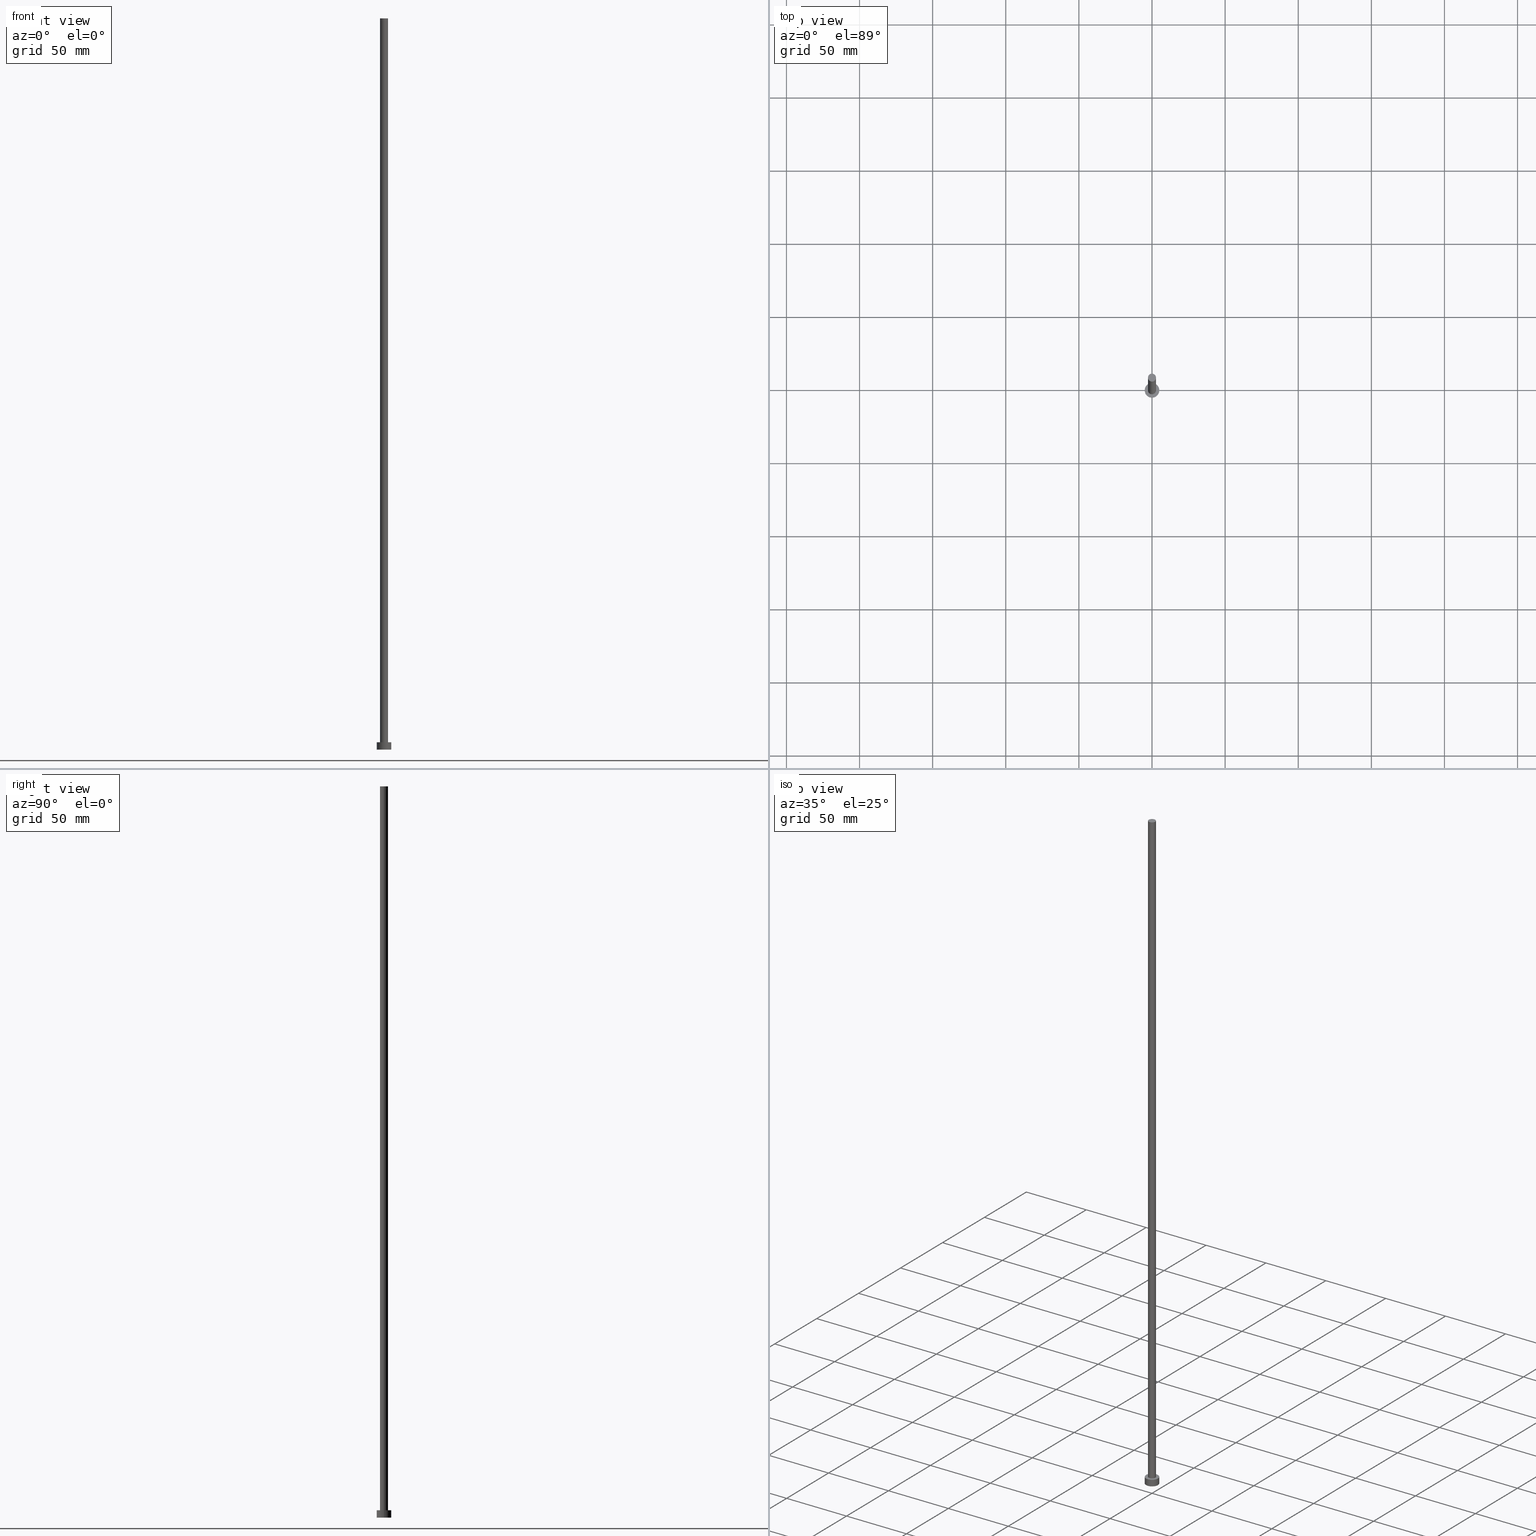
[diagram: canonical four-view strip — front | top / right | iso, engineering-drawing reading convention]
A machine part, canonical four-view strip (front | top / right | iso — engineering-drawing reading convention). The complete STEP part file that produces these views, byte-faithful:
ISO-10303-21;
HEADER;
FILE_DESCRIPTION (( 'STEP AP203' ),
    '1' );
FILE_NAME ('67b7.STEP',
    '2023-02-13T15:46:44',
    ( '' ),
    ( '' ),
    'SwSTEP 2.0',
    'SolidWorks 2019',
    '' );
FILE_SCHEMA (( 'CONFIG_CONTROL_DESIGN' ));
ENDSEC;

DATA;
#1 = CARTESIAN_POINT ( 'NONE',  ( 0.000000000000000000, 0.000000000000000000, 5.000000000000000000 ) ) ;
#2 = DIRECTION ( 'NONE',  ( 1.000000000000000000, 0.000000000000000000, 0.000000000000000000 ) ) ;
#3 = CARTESIAN_POINT ( 'NONE',  ( 0.000000000000000000, 0.000000000000000000, 500.0000000000000000 ) ) ;
#4 = VECTOR ( 'NONE', #43, 1000.000000000000000 ) ;
#5 = CARTESIAN_POINT ( 'NONE',  ( 0.000000000000000000, 0.000000000000000000, 5.000000000000000000 ) ) ;
#6 = DIRECTION ( 'NONE',  ( 1.000000000000000000, 0.000000000000000000, 0.000000000000000000 ) ) ;
#7 = PRODUCT_RELATED_PRODUCT_CATEGORY ( 'detail', '', ( #13 ) ) ;
#8 = DATE_AND_TIME ( #212, #231 ) ;
#9 = PERSON_AND_ORGANIZATION_ROLE ( 'creator' ) ;
#10 = SHAPE_DEFINITION_REPRESENTATION ( #150, #181 ) ;
#11 = EDGE_CURVE ( 'NONE', #56, #203, #76, .T. ) ;
#12 = EDGE_LOOP ( 'NONE', ( #233, #74 ) ) ;
#13 = PRODUCT ( '67b7', '67b7', '', ( #86 ) ) ;
#14 = CIRCLE ( 'NONE', #164, 2.750000000000000000 ) ;
#15 = PERSON_AND_ORGANIZATION ( #95, #160 ) ;
#16 = AXIS2_PLACEMENT_3D ( 'NONE', #204, #21, #123 ) ;
#17 = VERTEX_POINT ( 'NONE', #20 ) ;
#18 = LOCAL_TIME ( 16, 46, 44.00000000000000000, #138 ) ;
#19 = ORIENTED_EDGE ( 'NONE', *, *, #211, .F. ) ;
#20 = CARTESIAN_POINT ( 'NONE',  ( 5.000000000000000000, 6.123233995736766282E-16, 0.000000000000000000 ) ) ;
#21 = DIRECTION ( 'NONE',  ( -0.000000000000000000, -0.000000000000000000, -1.000000000000000000 ) ) ;
#22 = EDGE_CURVE ( 'NONE', #75, #217, #60, .T. ) ;
#23 = DIRECTION ( 'NONE',  ( 1.000000000000000000, 0.000000000000000000, 0.000000000000000000 ) ) ;
#24 = AXIS2_PLACEMENT_3D ( 'NONE', #1, #237, #2 ) ;
#25 = AXIS2_PLACEMENT_3D ( 'NONE', #192, #50, #88 ) ;
#26 = CARTESIAN_POINT ( 'NONE',  ( 0.000000000000000000, 0.000000000000000000, 0.000000000000000000 ) ) ;
#27 = CYLINDRICAL_SURFACE ( 'NONE', #25, 2.750000000000000000 ) ;
#28 = DIRECTION ( 'NONE',  ( 0.000000000000000000, 0.000000000000000000, 1.000000000000000000 ) ) ;
#29 = CC_DESIGN_PERSON_AND_ORGANIZATION_ASSIGNMENT ( #15, #177, ( #49 ) ) ;
#30 = DIRECTION ( 'NONE',  ( 0.000000000000000000, 0.000000000000000000, 1.000000000000000000 ) ) ;
#31 = APPROVAL_DATE_TIME ( #8, #103 ) ;
#32 = AXIS2_PLACEMENT_3D ( 'NONE', #5, #165, #145 ) ;
#33 = PERSON_AND_ORGANIZATION ( #95, #160 ) ;
#34 = ORIENTED_EDGE ( 'NONE', *, *, #218, .F. ) ;
#35 = APPROVAL ( #110, 'NEUR�EN�' ) ;
#36 = AXIS2_PLACEMENT_3D ( 'NONE', #186, #102, #125 ) ;
#37 = VECTOR ( 'NONE', #106, 1000.000000000000000 ) ;
#38 = EDGE_LOOP ( 'NONE', ( #79, #202 ) ) ;
#39 = APPROVAL_DATE_TIME ( #92, #35 ) ;
#40 = EDGE_LOOP ( 'NONE', ( #178, #97, #94, #19 ) ) ;
#41 = FACE_OUTER_BOUND ( 'NONE', #119, .T. ) ;
#42 = PLANE ( 'NONE',  #36 ) ;
#43 = DIRECTION ( 'NONE',  ( -0.000000000000000000, -0.000000000000000000, -1.000000000000000000 ) ) ;
#44 = CC_DESIGN_PERSON_AND_ORGANIZATION_ASSIGNMENT ( #216, #55, ( #99 ) ) ;
#45 = DIRECTION ( 'NONE',  ( 1.000000000000000000, 0.000000000000000000, 0.000000000000000000 ) ) ;
#46 = CC_DESIGN_APPROVAL ( #103, ( #239 ) ) ;
#47 = DIRECTION ( 'NONE',  ( 1.000000000000000000, 0.000000000000000000, 0.000000000000000000 ) ) ;
#48 = PERSON_AND_ORGANIZATION ( #95, #160 ) ;
#49 = PRODUCT_DEFINITION_FORMATION_WITH_SPECIFIED_SOURCE ( 'LIBOVOLN�', '', #13, .NOT_KNOWN. ) ;
#50 = DIRECTION ( 'NONE',  ( -0.000000000000000000, -0.000000000000000000, -1.000000000000000000 ) ) ;
#51 = DATE_TIME_ROLE ( 'creation_date' ) ;
#52 = CC_DESIGN_APPROVAL ( #133, ( #99 ) ) ;
#53 = DATE_AND_TIME ( #176, #220 ) ;
#54 = ORIENTED_EDGE ( 'NONE', *, *, #218, .T. ) ;
#55 = PERSON_AND_ORGANIZATION_ROLE ( 'classification_officer' ) ;
#56 = VERTEX_POINT ( 'NONE', #161 ) ;
#57 = ORIENTED_EDGE ( 'NONE', *, *, #22, .T. ) ;
#58 = DIRECTION ( 'NONE',  ( 1.000000000000000000, 0.000000000000000000, -0.000000000000000000 ) ) ;
#59 = EDGE_CURVE ( 'NONE', #250, #219, #238, .T. ) ;
#60 = CIRCLE ( 'NONE', #209, 2.750000000000000000 ) ;
#61 = DIRECTION ( 'NONE',  ( 1.000000000000000000, 0.000000000000000000, 0.000000000000000000 ) ) ;
#62 = EDGE_LOOP ( 'NONE', ( #137, #180 ) ) ;
#63 = ADVANCED_FACE ( 'NONE', ( #101 ), #81, .F. ) ;
#64 = DIRECTION ( 'NONE',  ( 0.000000000000000000, 0.000000000000000000, 1.000000000000000000 ) ) ;
#65 = LINE ( 'NONE', #185, #4 ) ;
#66 = PERSON_AND_ORGANIZATION_ROLE ( 'design_owner' ) ;
#67 = EDGE_CURVE ( 'NONE', #219, #250, #14, .T. ) ;
#68 =( LENGTH_UNIT ( ) NAMED_UNIT ( * ) SI_UNIT ( .MILLI., .METRE. ) );
#69 = AXIS2_PLACEMENT_3D ( 'NONE', #241, #191, #58 ) ;
#70 = COORDINATED_UNIVERSAL_TIME_OFFSET ( 1, 0, .AHEAD. ) ;
#71 = DIRECTION ( 'NONE',  ( 1.000000000000000000, 0.000000000000000000, 0.000000000000000000 ) ) ;
#72 = EDGE_CURVE ( 'NONE', #17, #200, #115, .T. ) ;
#73 = AXIS2_PLACEMENT_3D ( 'NONE', #89, #132, #247 ) ;
#74 = ORIENTED_EDGE ( 'NONE', *, *, #198, .F. ) ;
#75 = VERTEX_POINT ( 'NONE', #240 ) ;
#76 = CIRCLE ( 'NONE', #24, 5.000000000000000000 ) ;
#77 = LOCAL_TIME ( 16, 46, 44.00000000000000000, #70 ) ;
#78 = APPROVAL_ROLE ( '' ) ;
#79 = ORIENTED_EDGE ( 'NONE', *, *, #59, .T. ) ;
#80 = CARTESIAN_POINT ( 'NONE',  ( 0.000000000000000000, 0.000000000000000000, 5.000000000000000000 ) ) ;
#81 = PLANE ( 'NONE',  #205 ) ;
#82 = DIRECTION ( 'NONE',  ( 0.000000000000000000, 0.000000000000000000, 1.000000000000000000 ) ) ;
#83 = DIRECTION ( 'NONE',  ( 0.000000000000000000, 0.000000000000000000, 1.000000000000000000 ) ) ;
#84 = CARTESIAN_POINT ( 'NONE',  ( 5.000000000000000000, 6.123233995736766282E-16, 5.000000000000000000 ) ) ;
#85 = CARTESIAN_POINT ( 'NONE',  ( 2.750000000000000000, 3.367778697655221012E-16, 500.0000000000000000 ) ) ;
#86 = MECHANICAL_CONTEXT ( 'NONE', #112, 'mechanical' ) ;
#87 = EDGE_CURVE ( 'NONE', #56, #200, #65, .T. ) ;
#88 = DIRECTION ( 'NONE',  ( -1.000000000000000000, 0.000000000000000000, 0.000000000000000000 ) ) ;
#89 = CARTESIAN_POINT ( 'NONE',  ( 0.000000000000000000, 0.000000000000000000, 0.000000000000000000 ) ) ;
#90 = VECTOR ( 'NONE', #245, 1000.000000000000000 ) ;
#91 = APPROVAL_ROLE ( '' ) ;
#92 = DATE_AND_TIME ( #98, #254 ) ;
#93 = DESIGN_CONTEXT ( 'detailed design', #126, 'design' ) ;
#94 = ORIENTED_EDGE ( 'NONE', *, *, #198, .T. ) ;
#95 = PERSON ( 'NEUR�EN�', 'NEUR�EN�', 'NEUR�EN�', ('NEUR�EN�'), ('NEUR�EN�'), ('NEUR�EN�') ) ;
#96 = APPROVAL_DATE_TIME ( #199, #133 ) ;
#97 = ORIENTED_EDGE ( 'NONE', *, *, #249, .T. ) ;
#98 = CALENDAR_DATE ( 2023, 13, 2 ) ;
#99 = SECURITY_CLASSIFICATION ( '', '', #179 ) ;
#100 = LINE ( 'NONE', #167, #90 ) ;
#101 = FACE_OUTER_BOUND ( 'NONE', #157, .T. ) ;
#102 = DIRECTION ( 'NONE',  ( 0.000000000000000000, 0.000000000000000000, 1.000000000000000000 ) ) ;
#103 = APPROVAL ( #128, 'NEUR�EN�' ) ;
#104 = CARTESIAN_POINT ( 'NONE',  ( 0.000000000000000000, 0.000000000000000000, 500.0000000000000000 ) ) ;
#105 = FACE_OUTER_BOUND ( 'NONE', #62, .T. ) ;
#106 = DIRECTION ( 'NONE',  ( -0.000000000000000000, -0.000000000000000000, -1.000000000000000000 ) ) ;
#107 = DIRECTION ( 'NONE',  ( 1.000000000000000000, 0.000000000000000000, 0.000000000000000000 ) ) ;
#108 = CARTESIAN_POINT ( 'NONE',  ( 2.750000000000000000, 3.367778697655221012E-16, 5.000000000000000000 ) ) ;
#109 = PERSON_AND_ORGANIZATION ( #95, #160 ) ;
#110 = APPROVAL_STATUS ( 'not_yet_approved' ) ;
#111 = AXIS2_PLACEMENT_3D ( 'NONE', #3, #224, #146 ) ;
#112 = APPLICATION_CONTEXT ( 'configuration controlled 3d designs of mechanical parts and assemblies' ) ;
#113 = PERSON_AND_ORGANIZATION ( #95, #160 ) ;
#114 = ADVANCED_FACE ( 'NONE', ( #207 ), #42, .T. ) ;
#115 = CIRCLE ( 'NONE', #172, 5.000000000000000000 ) ;
#116 = VECTOR ( 'NONE', #170, 1000.000000000000000 ) ;
#117 = ORIENTED_EDGE ( 'NONE', *, *, #72, .T. ) ;
#118 = EDGE_LOOP ( 'NONE', ( #156, #235, #117, #201 ) ) ;
#119 = EDGE_LOOP ( 'NONE', ( #140, #251, #232, #54 ) ) ;
#120 = CYLINDRICAL_SURFACE ( 'NONE', #16, 5.000000000000000000 ) ;
#121 = CC_DESIGN_PERSON_AND_ORGANIZATION_ASSIGNMENT ( #109, #195, ( #239 ) ) ;
#122 = FACE_OUTER_BOUND ( 'NONE', #118, .T. ) ;
#123 = DIRECTION ( 'NONE',  ( -1.000000000000000000, 0.000000000000000000, 0.000000000000000000 ) ) ;
#124 = CARTESIAN_POINT ( 'NONE',  ( -5.000000000000000000, 0.000000000000000000, 0.000000000000000000 ) ) ;
#125 = DIRECTION ( 'NONE',  ( 1.000000000000000000, 0.000000000000000000, -0.000000000000000000 ) ) ;
#126 = APPLICATION_CONTEXT ( 'configuration controlled 3d designs of mechanical parts and assemblies' ) ;
#127 = LINE ( 'NONE', #155, #116 ) ;
#128 = APPROVAL_STATUS ( 'not_yet_approved' ) ;
#129 = AXIS2_PLACEMENT_3D ( 'NONE', #104, #83, #61 ) ;
#130 = APPROVAL_ROLE ( '' ) ;
#131 = LINE ( 'NONE', #85, #37 ) ;
#132 = DIRECTION ( 'NONE',  ( 0.000000000000000000, 0.000000000000000000, 1.000000000000000000 ) ) ;
#133 = APPROVAL ( #182, 'NEUR�EN�' ) ;
#134 = APPROVAL_PERSON_ORGANIZATION ( #113, #133, #78 ) ;
#135 = CALENDAR_DATE ( 2023, 13, 2 ) ;
#136 = ADVANCED_FACE ( 'NONE', ( #41 ), #208, .T. ) ;
#137 = ORIENTED_EDGE ( 'NONE', *, *, #11, .T. ) ;
#138 = COORDINATED_UNIVERSAL_TIME_OFFSET ( 1, 0, .AHEAD. ) ;
#139 = ORIENTED_EDGE ( 'NONE', *, *, #211, .T. ) ;
#140 = ORIENTED_EDGE ( 'NONE', *, *, #252, .F. ) ;
#141 = DIRECTION ( 'NONE',  ( 0.000000000000000000, 0.000000000000000000, 1.000000000000000000 ) ) ;
#142 = CLOSED_SHELL ( 'NONE', ( #227, #190, #136, #163, #63, #194, #114 ) ) ;
#143 = CC_DESIGN_SECURITY_CLASSIFICATION ( #99, ( #49 ) ) ;
#144 = CARTESIAN_POINT ( 'NONE',  ( 0.000000000000000000, 0.000000000000000000, 0.000000000000000000 ) ) ;
#145 = DIRECTION ( 'NONE',  ( -1.000000000000000000, 0.000000000000000000, 0.000000000000000000 ) ) ;
#146 = DIRECTION ( 'NONE',  ( -1.000000000000000000, 0.000000000000000000, 0.000000000000000000 ) ) ;
#147 = APPROVAL_PERSON_ORGANIZATION ( #175, #35, #91 ) ;
#148 = PLANE ( 'NONE',  #69 ) ;
#149 = APPLICATION_PROTOCOL_DEFINITION ( 'international standard', 'config_control_design', 1994, #112 ) ;
#150 = PRODUCT_DEFINITION_SHAPE ( 'NONE', 'NONE',  #239 ) ;
#151 = APPLICATION_PROTOCOL_DEFINITION ( 'international standard', 'config_control_design', 1994, #126 ) ;
#152 = CC_DESIGN_DATE_AND_TIME_ASSIGNMENT ( #229, #51, ( #239 ) ) ;
#153 = CIRCLE ( 'NONE', #206, 2.750000000000000000 ) ;
#154 = CALENDAR_DATE ( 2023, 13, 2 ) ;
#155 = CARTESIAN_POINT ( 'NONE',  ( 5.000000000000000000, 6.123233995736766282E-16, 5.000000000000000000 ) ) ;
#156 = ORIENTED_EDGE ( 'NONE', *, *, #214, .F. ) ;
#157 = EDGE_LOOP ( 'NONE', ( #34, #159 ) ) ;
#158 = DATE_TIME_ROLE ( 'classification_date' ) ;
#159 = ORIENTED_EDGE ( 'NONE', *, *, #72, .F. ) ;
#160 = ORGANIZATION ( 'NEUR�EN�', 'NEUR�EN�', '' ) ;
#161 = CARTESIAN_POINT ( 'NONE',  ( -5.000000000000000000, 0.000000000000000000, 5.000000000000000000 ) ) ;
#162 = DIRECTION ( 'NONE',  ( 0.000000000000000000, 0.000000000000000000, 1.000000000000000000 ) ) ;
#163 = ADVANCED_FACE ( 'NONE', ( #236, #105 ), #148, .T. ) ;
#164 = AXIS2_PLACEMENT_3D ( 'NONE', #188, #141, #6 ) ;
#165 = DIRECTION ( 'NONE',  ( -0.000000000000000000, -0.000000000000000000, -1.000000000000000000 ) ) ;
#166 = DIRECTION ( 'NONE',  ( 1.000000000000000000, 0.000000000000000000, -0.000000000000000000 ) ) ;
#167 = CARTESIAN_POINT ( 'NONE',  ( -2.750000000000000000, 0.000000000000000000, 500.0000000000000000 ) ) ;
#168 = CIRCLE ( 'NONE', #234, 5.000000000000000000 ) ;
#169 =( NAMED_UNIT ( * ) PLANE_ANGLE_UNIT ( ) SI_UNIT ( $, .RADIAN. ) );
#170 = DIRECTION ( 'NONE',  ( -0.000000000000000000, -0.000000000000000000, -1.000000000000000000 ) ) ;
#171 = CARTESIAN_POINT ( 'NONE',  ( -2.750000000000000000, 0.000000000000000000, 500.0000000000000000 ) ) ;
#172 = AXIS2_PLACEMENT_3D ( 'NONE', #144, #223, #47 ) ;
#173 = CARTESIAN_POINT ( 'NONE',  ( 2.750000000000000000, 3.367778697655221012E-16, 500.0000000000000000 ) ) ;
#174 = CIRCLE ( 'NONE', #73, 5.000000000000000000 ) ;
#175 = PERSON_AND_ORGANIZATION ( #95, #160 ) ;
#176 = CALENDAR_DATE ( 2023, 13, 2 ) ;
#177 = PERSON_AND_ORGANIZATION_ROLE ( 'design_supplier' ) ;
#178 = ORIENTED_EDGE ( 'NONE', *, *, #67, .F. ) ;
#179 = SECURITY_CLASSIFICATION_LEVEL ( 'unclassified' ) ;
#180 = ORIENTED_EDGE ( 'NONE', *, *, #214, .T. ) ;
#181 = ADVANCED_BREP_SHAPE_REPRESENTATION ( '67b7', ( #228, #184 ), #242 ) ;
#182 = APPROVAL_STATUS ( 'not_yet_approved' ) ;
#183 = CC_DESIGN_PERSON_AND_ORGANIZATION_ASSIGNMENT ( #244, #66, ( #13 ) ) ;
#184 = AXIS2_PLACEMENT_3D ( 'NONE', #193, #30, #107 ) ;
#185 = CARTESIAN_POINT ( 'NONE',  ( -5.000000000000000000, 0.000000000000000000, 5.000000000000000000 ) ) ;
#186 = CARTESIAN_POINT ( 'NONE',  ( 0.000000000000000000, 0.000000000000000000, 500.0000000000000000 ) ) ;
#187 = CYLINDRICAL_SURFACE ( 'NONE', #111, 2.750000000000000000 ) ;
#188 = CARTESIAN_POINT ( 'NONE',  ( 0.000000000000000000, 0.000000000000000000, 500.0000000000000000 ) ) ;
#189 = CC_DESIGN_DATE_AND_TIME_ASSIGNMENT ( #53, #158, ( #99 ) ) ;
#190 = ADVANCED_FACE ( 'NONE', ( #122 ), #120, .T. ) ;
#191 = DIRECTION ( 'NONE',  ( 0.000000000000000000, 0.000000000000000000, 1.000000000000000000 ) ) ;
#192 = CARTESIAN_POINT ( 'NONE',  ( 0.000000000000000000, 0.000000000000000000, 500.0000000000000000 ) ) ;
#193 = CARTESIAN_POINT ( 'NONE',  ( 0.000000000000000000, 0.000000000000000000, 0.000000000000000000 ) ) ;
#194 = ADVANCED_FACE ( 'NONE', ( #222 ), #187, .T. ) ;
#195 = PERSON_AND_ORGANIZATION_ROLE ( 'creator' ) ;
#196 = COORDINATED_UNIVERSAL_TIME_OFFSET ( 1, 0, .AHEAD. ) ;
#197 = CC_DESIGN_APPROVAL ( #35, ( #49 ) ) ;
#198 = EDGE_CURVE ( 'NONE', #217, #75, #153, .T. ) ;
#199 = DATE_AND_TIME ( #135, #18 ) ;
#200 = VERTEX_POINT ( 'NONE', #124 ) ;
#201 = ORIENTED_EDGE ( 'NONE', *, *, #87, .F. ) ;
#202 = ORIENTED_EDGE ( 'NONE', *, *, #67, .T. ) ;
#203 = VERTEX_POINT ( 'NONE', #84 ) ;
#204 = CARTESIAN_POINT ( 'NONE',  ( 0.000000000000000000, 0.000000000000000000, 5.000000000000000000 ) ) ;
#205 = AXIS2_PLACEMENT_3D ( 'NONE', #26, #64, #166 ) ;
#206 = AXIS2_PLACEMENT_3D ( 'NONE', #225, #82, #45 ) ;
#207 = FACE_OUTER_BOUND ( 'NONE', #38, .T. ) ;
#208 = CYLINDRICAL_SURFACE ( 'NONE', #32, 5.000000000000000000 ) ;
#209 = AXIS2_PLACEMENT_3D ( 'NONE', #80, #162, #23 ) ;
#210 = FACE_OUTER_BOUND ( 'NONE', #40, .T. ) ;
#211 = EDGE_CURVE ( 'NONE', #250, #75, #100, .T. ) ;
#212 = CALENDAR_DATE ( 2023, 13, 2 ) ;
#213 = CC_DESIGN_PERSON_AND_ORGANIZATION_ASSIGNMENT ( #33, #9, ( #49 ) ) ;
#214 = EDGE_CURVE ( 'NONE', #203, #56, #168, .T. ) ;
#215 = APPROVAL_PERSON_ORGANIZATION ( #48, #103, #130 ) ;
#216 = PERSON_AND_ORGANIZATION ( #95, #160 ) ;
#217 = VERTEX_POINT ( 'NONE', #108 ) ;
#218 = EDGE_CURVE ( 'NONE', #200, #17, #174, .T. ) ;
#219 = VERTEX_POINT ( 'NONE', #173 ) ;
#220 = LOCAL_TIME ( 16, 46, 44.00000000000000000, #230 ) ;
#221 = ORIENTED_EDGE ( 'NONE', *, *, #59, .F. ) ;
#222 = FACE_OUTER_BOUND ( 'NONE', #255, .T. ) ;
#223 = DIRECTION ( 'NONE',  ( 0.000000000000000000, 0.000000000000000000, 1.000000000000000000 ) ) ;
#224 = DIRECTION ( 'NONE',  ( -0.000000000000000000, -0.000000000000000000, -1.000000000000000000 ) ) ;
#225 = CARTESIAN_POINT ( 'NONE',  ( 0.000000000000000000, 0.000000000000000000, 5.000000000000000000 ) ) ;
#226 = ORIENTED_EDGE ( 'NONE', *, *, #249, .F. ) ;
#227 = ADVANCED_FACE ( 'NONE', ( #210 ), #27, .T. ) ;
#228 = MANIFOLD_SOLID_BREP ( 'P�idat vysunut�m3', #142 ) ;
#229 = DATE_AND_TIME ( #154, #77 ) ;
#230 = COORDINATED_UNIVERSAL_TIME_OFFSET ( 1, 0, .AHEAD. ) ;
#231 = LOCAL_TIME ( 16, 46, 44.00000000000000000, #196 ) ;
#232 = ORIENTED_EDGE ( 'NONE', *, *, #87, .T. ) ;
#233 = ORIENTED_EDGE ( 'NONE', *, *, #22, .F. ) ;
#234 = AXIS2_PLACEMENT_3D ( 'NONE', #246, #28, #71 ) ;
#235 = ORIENTED_EDGE ( 'NONE', *, *, #252, .T. ) ;
#236 = FACE_BOUND ( 'NONE', #12, .T. ) ;
#237 = DIRECTION ( 'NONE',  ( 0.000000000000000000, 0.000000000000000000, 1.000000000000000000 ) ) ;
#238 = CIRCLE ( 'NONE', #129, 2.750000000000000000 ) ;
#239 = PRODUCT_DEFINITION ( 'NEZN�M�', '', #49, #93 ) ;
#240 = CARTESIAN_POINT ( 'NONE',  ( -2.750000000000000000, 0.000000000000000000, 5.000000000000000000 ) ) ;
#241 = CARTESIAN_POINT ( 'NONE',  ( 0.000000000000000000, 0.000000000000000000, 5.000000000000000000 ) ) ;
#242 =( GEOMETRIC_REPRESENTATION_CONTEXT ( 3 ) GLOBAL_UNCERTAINTY_ASSIGNED_CONTEXT ( ( #248 ) ) GLOBAL_UNIT_ASSIGNED_CONTEXT ( ( #68, #169, #243 ) ) REPRESENTATION_CONTEXT ( 'NONE', 'WORKASPACE' ) );
#243 =( NAMED_UNIT ( * ) SI_UNIT ( $, .STERADIAN. ) SOLID_ANGLE_UNIT ( ) );
#244 = PERSON_AND_ORGANIZATION ( #95, #160 ) ;
#245 = DIRECTION ( 'NONE',  ( -0.000000000000000000, -0.000000000000000000, -1.000000000000000000 ) ) ;
#246 = CARTESIAN_POINT ( 'NONE',  ( 0.000000000000000000, 0.000000000000000000, 5.000000000000000000 ) ) ;
#247 = DIRECTION ( 'NONE',  ( 1.000000000000000000, 0.000000000000000000, 0.000000000000000000 ) ) ;
#248 = UNCERTAINTY_MEASURE_WITH_UNIT (LENGTH_MEASURE( 1.000000000000000082E-05 ), #68, 'distance_accuracy_value', 'NONE');
#249 = EDGE_CURVE ( 'NONE', #219, #217, #131, .T. ) ;
#250 = VERTEX_POINT ( 'NONE', #171 ) ;
#251 = ORIENTED_EDGE ( 'NONE', *, *, #11, .F. ) ;
#252 = EDGE_CURVE ( 'NONE', #203, #17, #127, .T. ) ;
#253 = COORDINATED_UNIVERSAL_TIME_OFFSET ( 1, 0, .AHEAD. ) ;
#254 = LOCAL_TIME ( 16, 46, 44.00000000000000000, #253 ) ;
#255 = EDGE_LOOP ( 'NONE', ( #226, #221, #139, #57 ) ) ;
ENDSEC;
END-ISO-10303-21;
